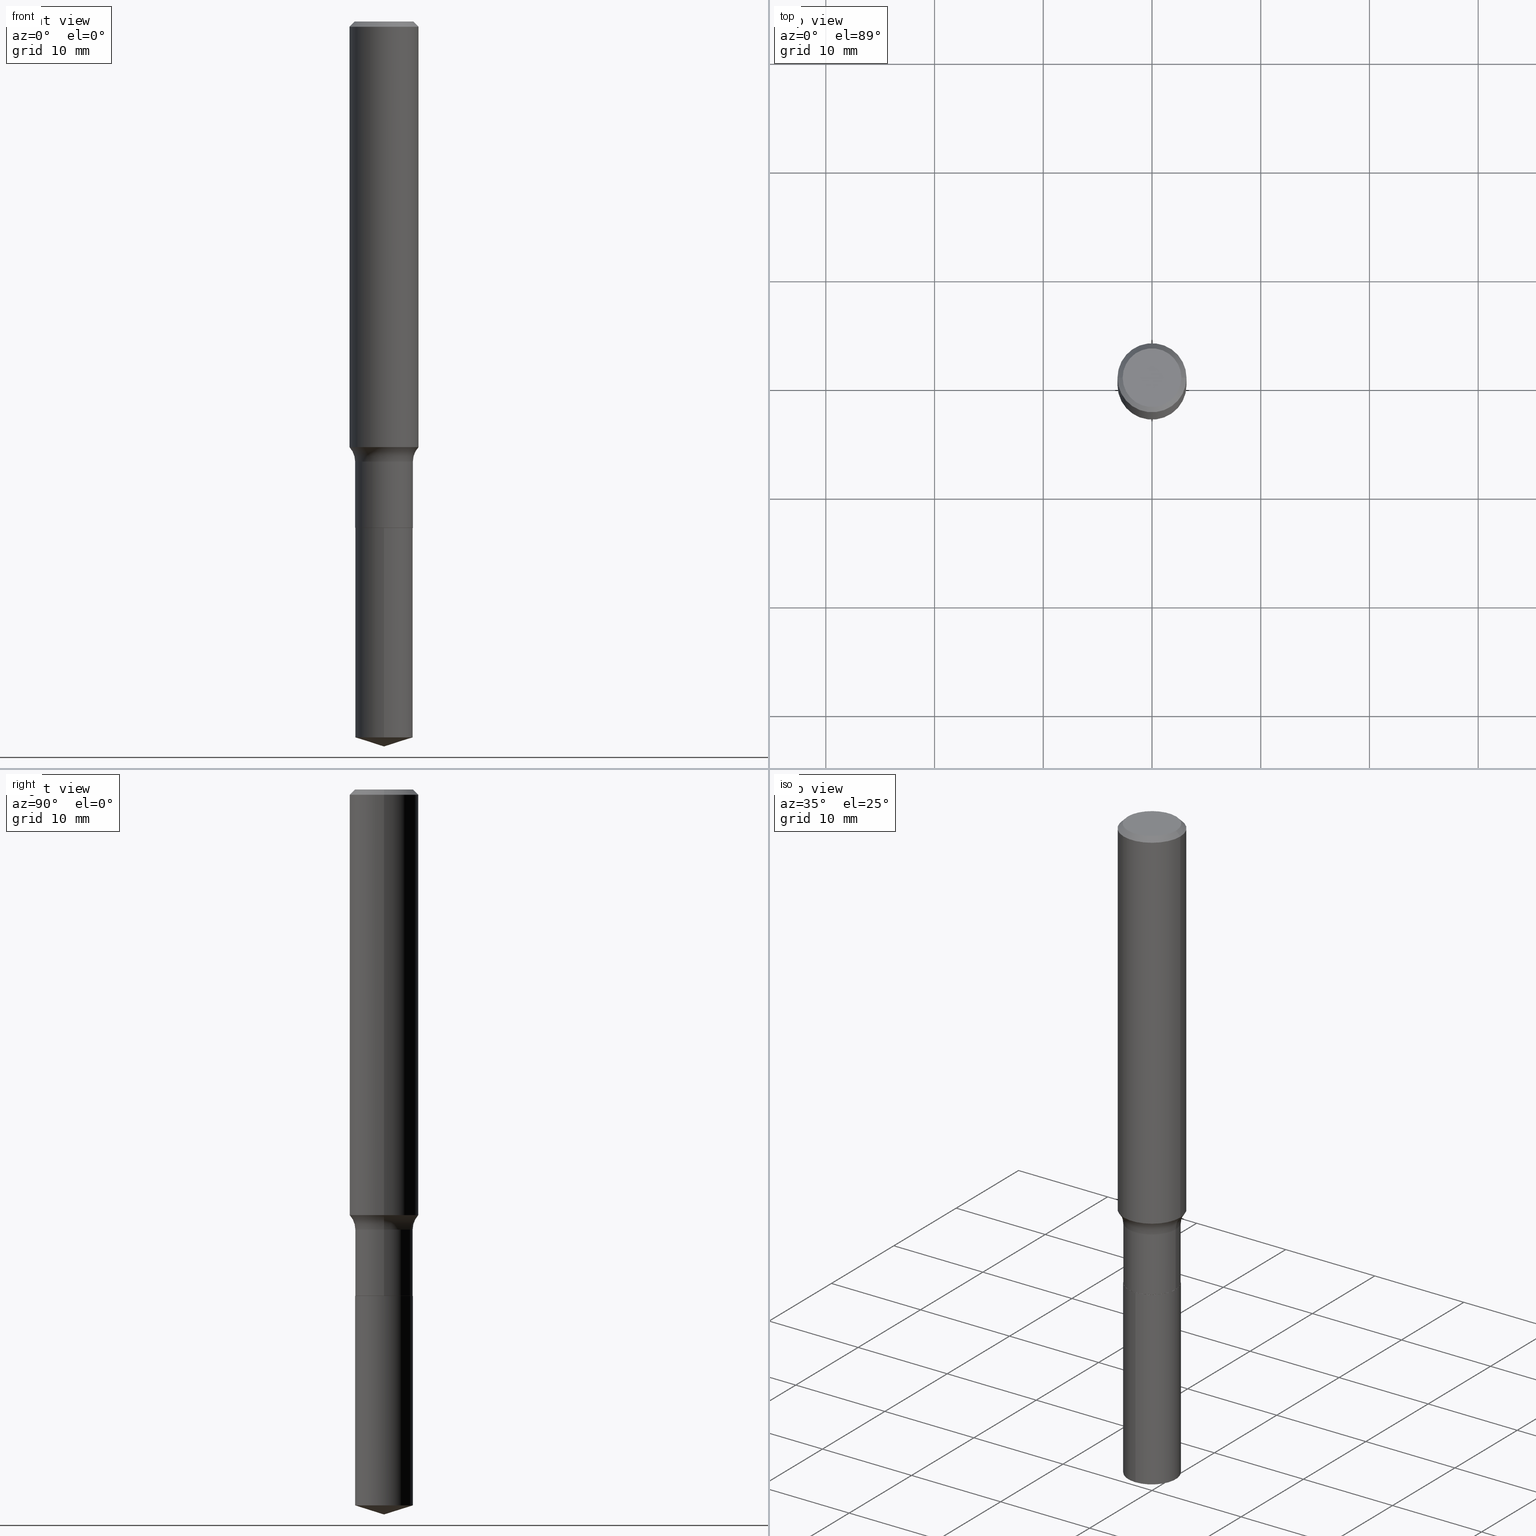
[diagram: canonical four-view strip — front | top / right | iso, engineering-drawing reading convention]
A machine part, canonical four-view strip (front | top / right | iso — engineering-drawing reading convention). The complete STEP part file that produces these views, byte-faithful:
ISO-10303-21;
HEADER;
FILE_DESCRIPTION (( 'STEP AP203' ),
    '1' );
FILE_NAME ('51780.STEP',
    '2024-04-19T13:24:04',
    ( '' ),
    ( '' ),
    'SwSTEP 2.0',
    'SolidWorks 2023',
    '' );
FILE_SCHEMA (( 'CONFIG_CONTROL_DESIGN' ));
ENDSEC;

DATA;
#1 = CYLINDRICAL_SURFACE ( 'NONE', #189, 0.1250000000000001110 ) ;
#2 = CARTESIAN_POINT ( 'NONE',  ( -0.1250000000000002220, -4.491829937990087601E-15, -1.540895635854323764 ) ) ;
#3 = VERTEX_POINT ( 'NONE', #454 ) ;
#4 = CARTESIAN_POINT ( 'NONE',  ( -7.297195998181512181E-16, -0.1045000000000090162, -2.592051276562145734 ) ) ;
#5 = CONICAL_SURFACE ( 'NONE', #378, 0.1039999999999999813, 0.7853981633975507526 ) ;
#6 = DIRECTION ( 'NONE',  ( -2.445468806185136597E-29, 3.491481338843145583E-15, 1.000000000000000000 ) ) ;
#7 = ORIENTED_EDGE ( 'NONE', *, *, #139, .F. ) ;
#8 = EDGE_CURVE ( 'NONE', #18, #58, #70, .T. ) ;
#9 = DIRECTION ( 'NONE',  ( 0.7071067811866199593, -2.468850131083015945E-15, 0.7071067811864750752 ) ) ;
#10 = FACE_OUTER_BOUND ( 'NONE', #411, .T. ) ;
#11 = CARTESIAN_POINT ( 'NONE',  ( 7.425171588693677723E-16, 0.1044999999999909057, -2.592051276562146622 ) ) ;
#12 = DIRECTION ( 'NONE',  ( 1.000000000000000000, -6.982962677686266711E-15, 4.876176775795935232E-29 ) ) ;
#13 = ORIENTED_EDGE ( 'NONE', *, *, #336, .F. ) ;
#14 = DIRECTION ( 'NONE',  ( -2.438088387897960049E-29, 3.491481338843145188E-15, 1.000000000000000000 ) ) ;
#15 = AXIS2_PLACEMENT_3D ( 'NONE', #226, #187, #339 ) ;
#16 = ADVANCED_FACE ( 'NONE', ( #32 ), #186, .T. ) ;
#17 = CARTESIAN_POINT ( 'NONE',  ( -0.1039999999999999813, -5.664412330247825043E-15, -1.834000000000000075 ) ) ;
#18 = VERTEX_POINT ( 'NONE', #4 ) ;
#19 = DIRECTION ( 'NONE',  ( -2.445444567542754060E-29, 3.491516049958615080E-15, 1.000000000000000000 ) ) ;
#20 = ORIENTED_EDGE ( 'NONE', *, *, #194, .T. ) ;
#21 = DIRECTION ( 'NONE',  ( -6.982962677686266711E-15, -1.000000000000000000, 5.228417212754571700E-15 ) ) ;
#22 = AXIS2_PLACEMENT_3D ( 'NONE', #246, #83, #310 ) ;
#23 = CONICAL_SURFACE ( 'NONE', #54, 0.1039999999999999813, 0.7853981633975507526 ) ;
#24 = DATE_AND_TIME ( #448, #372 ) ;
#25 = EDGE_LOOP ( 'NONE', ( #332, #261, #285, #263 ) ) ;
#26 = APPROVAL_PERSON_ORGANIZATION ( #252, #185, #334 ) ;
#27 = CARTESIAN_POINT ( 'NONE',  ( 0.1039999999999999813, -7.129604893917701409E-15, -1.834000000000000075 ) ) ;
#28 = EDGE_CURVE ( 'NONE', #294, #169, #429, .T. ) ;
#29 = DATE_TIME_ROLE ( 'creation_date' ) ;
#30 = VERTEX_POINT ( 'NONE', #11 ) ;
#31 = CARTESIAN_POINT ( 'NONE',  ( -0.1250000000000000000, 8.074050596074738982E-16, -0.01875000000000013115 ) ) ;
#32 = FACE_OUTER_BOUND ( 'NONE', #255, .T. ) ;
#33 = AXIS2_PLACEMENT_3D ( 'NONE', #303, #34, #111 ) ;
#34 = DIRECTION ( 'NONE',  ( -2.445468806185136597E-29, 3.491481338843145583E-15, 1.000000000000000000 ) ) ;
#35 = CARTESIAN_POINT ( 'NONE',  ( 4.585254011597162998E-31, -6.546527510330944066E-17, -0.01875000000000013115 ) ) ;
#36 = CLOSED_SHELL ( 'NONE', ( #151, #290, #223, #163, #173 ) ) ;
#37 = DIMENSIONAL_EXPONENTS ( 1.000000000000000000, 0.000000000000000000, 0.000000000000000000, 0.000000000000000000, 0.000000000000000000, 0.000000000000000000, 0.000000000000000000 ) ;
#38 = LOCAL_TIME ( 9, 24, 4.000000000000000000, #478 ) ;
#39 = CARTESIAN_POINT ( 'NONE',  ( 6.419291989799729163E-29, -9.165229631141365867E-15, -2.625000000000000000 ) ) ;
#40 = CYLINDRICAL_SURFACE ( 'NONE', #143, 0.1250000000000001110 ) ;
#41 = CARTESIAN_POINT ( 'NONE',  ( -7.297195998181698549E-16, -0.1045000000000063933, -1.833999999999999853 ) ) ;
#42 = FACE_OUTER_BOUND ( 'NONE', #165, .T. ) ;
#43 = ORIENTED_EDGE ( 'NONE', *, *, #481, .F. ) ;
#44 = FACE_OUTER_BOUND ( 'NONE', #238, .T. ) ;
#45 = AXIS2_PLACEMENT_3D ( 'NONE', #77, #239, #392 ) ;
#46 = DIRECTION ( 'NONE',  ( 0.000000000000000000, 0.000000000000000000, 1.000000000000000000 ) ) ;
#47 = FACE_OUTER_BOUND ( 'NONE', #114, .T. ) ;
#48 = APPROVAL_STATUS ( 'not_yet_approved' ) ;
#49 = DIRECTION ( 'NONE',  ( 6.776566513254251038E-15, 0.9537169507482278208, 0.3007057995042706211 ) ) ;
#50 = EDGE_CURVE ( 'NONE', #159, #58, #286, .T. ) ;
#51 = COORDINATED_UNIVERSAL_TIME_OFFSET ( 5, 0, .BEHIND. ) ;
#52 = CARTESIAN_POINT ( 'NONE',  ( 3.897099089536633274E-29, -5.564024661580436267E-15, -1.593599999999999905 ) ) ;
#53 = AXIS2_PLACEMENT_3D ( 'NONE', #269, #350, #313 ) ;
#54 = AXIS2_PLACEMENT_3D ( 'NONE', #136, #102, #480 ) ;
#55 = CALENDAR_DATE ( 2024, 19, 4 ) ;
#56 = EDGE_LOOP ( 'NONE', ( #418, #319, #377 ) ) ;
#57 = APPROVAL_DATE_TIME ( #100, #126 ) ;
#58 = VERTEX_POINT ( 'NONE', #41 ) ;
#59 = DIRECTION ( 'NONE',  ( -2.445468806185136597E-29, 3.491481338843145583E-15, 1.000000000000000000 ) ) ;
#60 = VERTEX_POINT ( 'NONE', #2 ) ;
#61 = DIRECTION ( 'NONE',  ( -0.7071067811865450192, 2.468850131082230634E-15, -0.7071067811865500152 ) ) ;
#62 = AXIS2_PLACEMENT_3D ( 'NONE', #222, #19, #21 ) ;
#63 = AXIS2_PLACEMENT_3D ( 'NONE', #283, #107, #68 ) ;
#64 = COORDINATED_UNIVERSAL_TIME_OFFSET ( 5, 0, .BEHIND. ) ;
#65 = VERTEX_POINT ( 'NONE', #160 ) ;
#66 = CYLINDRICAL_SURFACE ( 'NONE', #306, 0.1044999999999999679 ) ;
#67 = ORIENTED_EDGE ( 'NONE', *, *, #425, .F. ) ;
#68 = DIRECTION ( 'NONE',  ( -6.982962677686265922E-15, -1.000000000000000000, 3.500519750498747030E-15 ) ) ;
#69 = ADVANCED_FACE ( 'NONE', ( #44 ), #356, .F. ) ;
#70 = LINE ( 'NONE', #337, #149 ) ;
#71 = DIRECTION ( 'NONE',  ( 1.000000000000000000, -6.982962677686264344E-15, 0.000000000000000000 ) ) ;
#72 = MANIFOLD_SOLID_BREP ( 'Body-Move/Copy2[2]', #240 ) ;
#73 = EDGE_CURVE ( 'NONE', #420, #3, #432, .T. ) ;
#74 = DIRECTION ( 'NONE',  ( 1.000000000000000000, -6.982962677686267499E-15, 0.000000000000000000 ) ) ;
#75 = AXIS2_PLACEMENT_3D ( 'NONE', #299, #342, #488 ) ;
#76 = CARTESIAN_POINT ( 'NONE',  ( 0.000000000000000000, 0.000000000000000000, 0.000000000000000000 ) ) ;
#77 = CARTESIAN_POINT ( 'NONE',  ( -1.591006383764329968E-46, 2.271535455632767580E-32, 6.505936120470314915E-18 ) ) ;
#78 = CC_DESIGN_PERSON_AND_ORGANIZATION_ASSIGNMENT ( #122, #198, ( #193 ) ) ;
#79 = CARTESIAN_POINT ( 'NONE',  ( 6.338762166731291806E-29, -9.050124974246680744E-15, -2.592051276562146178 ) ) ;
#80 = DIRECTION ( 'NONE',  ( -2.445444567542754060E-29, 3.491516049958615080E-15, 1.000000000000000000 ) ) ;
#81 = DIRECTION ( 'NONE',  ( -2.445468806185136597E-29, 3.491481338843145583E-15, 1.000000000000000000 ) ) ;
#82 = VERTEX_POINT ( 'NONE', #128 ) ;
#83 = DIRECTION ( 'NONE',  ( -6.982962677686266711E-15, -1.000000000000000000, 3.491481338843145583E-15 ) ) ;
#84 = AXIS2_PLACEMENT_3D ( 'NONE', #280, #14, #153 ) ;
#85 = CC_DESIGN_APPROVAL ( #309, ( #487 ) ) ;
#86 = DIRECTION ( 'NONE',  ( -2.445468806185136597E-29, 3.491481338843145583E-15, 1.000000000000000000 ) ) ;
#87 = EDGE_CURVE ( 'NONE', #169, #420, #440, .T. ) ;
#88 = CARTESIAN_POINT ( 'NONE',  ( 4.484989790543541016E-29, -6.403376775438329103E-15, -1.834000000000000075 ) ) ;
#89 = PERSON_AND_ORGANIZATION ( #272, #393 ) ;
#90 = PRODUCT_RELATED_PRODUCT_CATEGORY ( 'detail', '', ( #193 ) ) ;
#91 = FACE_OUTER_BOUND ( 'NONE', #474, .T. ) ;
#92 = ORIENTED_EDGE ( 'NONE', *, *, #190, .T. ) ;
#93 = LINE ( 'NONE', #17, #414 ) ;
#94 = PERSON_AND_ORGANIZATION_ROLE ( 'classification_officer' ) ;
#95 = EDGE_LOOP ( 'NONE', ( #13, #363 ) ) ;
#96 = CARTESIAN_POINT ( 'NONE',  ( 0.1250000000000002220, -6.252878692400998539E-15, -1.540895635854323764 ) ) ;
#97 = EDGE_CURVE ( 'NONE', #413, #30, #271, .T. ) ;
#98 = ORIENTED_EDGE ( 'NONE', *, *, #87, .T. ) ;
#99 = DIRECTION ( 'NONE',  ( 7.105427357601001859E-15, 1.000000000000000000, -3.491481338843145583E-15 ) ) ;
#100 = DATE_AND_TIME ( #171, #322 ) ;
#101 = ORIENTED_EDGE ( 'NONE', *, *, #257, .T. ) ;
#102 = DIRECTION ( 'NONE',  ( -2.445468806185136597E-29, 3.491481338843145583E-15, 1.000000000000000000 ) ) ;
#103 = CIRCLE ( 'NONE', #15, 0.1044999999999999818 ) ;
#104 = CIRCLE ( 'NONE', #33, 0.1044999999999999540 ) ;
#105 = ORIENTED_EDGE ( 'NONE', *, *, #87, .F. ) ;
#106 = ADVANCED_FACE ( 'NONE', ( #389 ), #248, .F. ) ;
#107 = DIRECTION ( 'NONE',  ( -2.445444567542754060E-29, 3.491516049958615080E-15, 1.000000000000000000 ) ) ;
#108 = ORIENTED_EDGE ( 'NONE', *, *, #345, .T. ) ;
#109 =( GEOMETRIC_REPRESENTATION_CONTEXT ( 3 ) GLOBAL_UNCERTAINTY_ASSIGNED_CONTEXT ( ( #417 ) ) GLOBAL_UNIT_ASSIGNED_CONTEXT ( ( #237, #120, #457 ) ) REPRESENTATION_CONTEXT ( 'NONE', 'WORKASPACE' ) );
#110 = DIRECTION ( 'NONE',  ( -2.445468806185136597E-29, 3.491481338843145583E-15, 1.000000000000000000 ) ) ;
#111 = DIRECTION ( 'NONE',  ( 1.000000000000000000, -6.982962677686266711E-15, 0.000000000000000000 ) ) ;
#112 = PRODUCT_DEFINITION_SHAPE ( 'NONE', 'NONE',  #487 ) ;
#113 = CIRCLE ( 'NONE', #22, 0.07799999999999999989 ) ;
#114 = EDGE_LOOP ( 'NONE', ( #250, #92, #458, #216 ) ) ;
#115 = VECTOR ( 'NONE', #348, 39.37007874015748143 ) ;
#116 = EDGE_CURVE ( 'NONE', #436, #242, #266, .T. ) ;
#117 = PLANE ( 'NONE',  #489 ) ;
#118 = SECURITY_CLASSIFICATION ( '', '', #368 ) ;
#119 = DIRECTION ( 'NONE',  ( -1.000000000000000000, 6.982962677686265922E-15, -4.876176775795935793E-29 ) ) ;
#120 =( NAMED_UNIT ( * ) PLANE_ANGLE_UNIT ( ) SI_UNIT ( $, .RADIAN. ) );
#121 = DIRECTION ( 'NONE',  ( -2.445468806185136597E-29, 3.491481338843145583E-15, 1.000000000000000000 ) ) ;
#122 = PERSON_AND_ORGANIZATION ( #272, #393 ) ;
#123 = EDGE_LOOP ( 'NONE', ( #43, #135, #253, #276 ) ) ;
#124 = CARTESIAN_POINT ( 'NONE',  ( 4.484989790543541016E-29, -6.403376775438329103E-15, -1.834000000000000075 ) ) ;
#125 = CONICAL_SURFACE ( 'NONE', #359, 0.1250000000000000000, 0.7853981633974447263 ) ;
#126 = APPROVAL ( #445, 'UNSPECIFIED' ) ;
#127 = CC_DESIGN_PERSON_AND_ORGANIZATION_ASSIGNMENT ( #89, #247, ( #491 ) ) ;
#128 = CARTESIAN_POINT ( 'NONE',  ( -0.1044999999999999818, -5.240310689305368552E-15, -1.833500000000000352 ) ) ;
#129 = EDGE_LOOP ( 'NONE', ( #154, #441 ) ) ;
#130 = LINE ( 'NONE', #295, #346 ) ;
#131 = ORIENTED_EDGE ( 'NONE', *, *, #345, .F. ) ;
#132 = CARTESIAN_POINT ( 'NONE',  ( -8.985800873537872979E-28, 1.282960958384387014E-13, 36.74507874015748143 ) ) ;
#133 = EDGE_CURVE ( 'NONE', #282, #420, #113, .T. ) ;
#134 = CONICAL_SURFACE ( 'NONE', #384, 124.8659371009135413, 1.265363707695888129 ) ;
#135 = ORIENTED_EDGE ( 'NONE', *, *, #473, .F. ) ;
#136 = CARTESIAN_POINT ( 'NONE',  ( 4.484989790543541016E-29, -6.403376775438329103E-15, -1.834000000000000075 ) ) ;
#137 = EDGE_LOOP ( 'NONE', ( #7, #408, #464, #479 ) ) ;
#138 = DIRECTION ( 'NONE',  ( -2.445468806185136597E-29, 3.491481338843145583E-15, 1.000000000000000000 ) ) ;
#139 = EDGE_CURVE ( 'NONE', #172, #446, #259, .T. ) ;
#140 = APPROVAL_STATUS ( 'not_yet_approved' ) ;
#141 = EDGE_LOOP ( 'NONE', ( #365, #273, #225, #312 ) ) ;
#142 = DIRECTION ( 'NONE',  ( -2.445444567542754060E-29, 3.491516049958615080E-15, 1.000000000000000000 ) ) ;
#143 = AXIS2_PLACEMENT_3D ( 'NONE', #76, #86, #12 ) ;
#144 = LOCAL_TIME ( 9, 24, 4.000000000000000000, #482 ) ;
#145 = DIRECTION ( 'NONE',  ( -2.445468806185136597E-29, 3.491481338843145583E-15, 1.000000000000000000 ) ) ;
#146 = FACE_OUTER_BOUND ( 'NONE', #141, .T. ) ;
#147 = CARTESIAN_POINT ( 'NONE',  ( 4.483767056140448215E-29, -6.401631034768908389E-15, -1.833500000000000352 ) ) ;
#148 = ADVANCED_FACE ( 'NONE', ( #91 ), #382, .F. ) ;
#149 = VECTOR ( 'NONE', #227, 39.37007874015748143 ) ;
#150 = DIRECTION ( 'NONE',  ( 1.000000000000000000, -6.982962677686269077E-15, 0.000000000000000000 ) ) ;
#151 = ADVANCED_FACE ( 'NONE', ( #401 ), #354, .T. ) ;
#152 = CARTESIAN_POINT ( 'NONE',  ( 0.000000000000000000, 0.000000000000000000, 0.000000000000000000 ) ) ;
#153 = DIRECTION ( 'NONE',  ( 1.000000000000000000, -6.982962677686265922E-15, 4.876176775795935793E-29 ) ) ;
#154 = ORIENTED_EDGE ( 'NONE', *, *, #302, .T. ) ;
#155 = AXIS2_PLACEMENT_3D ( 'NONE', #147, #110, #71 ) ;
#156 = CARTESIAN_POINT ( 'NONE',  ( 0.1044999999999999679, -7.297195998182146228E-16, 5.095604730706752119E-30 ) ) ;
#157 = APPROVAL_PERSON_ORGANIZATION ( #331, #126, #291 ) ;
#158 = LINE ( 'NONE', #349, #402 ) ;
#159 = VERTEX_POINT ( 'NONE', #274 ) ;
#160 = CARTESIAN_POINT ( 'NONE',  ( -0.1039999999999999813, -5.661763103073714630E-15, -1.834000000000000075 ) ) ;
#161 = CARTESIAN_POINT ( 'NONE',  ( -1.591006383764329968E-46, 2.271535455632767580E-32, 6.505936120470314915E-18 ) ) ;
#162 = DIRECTION ( 'NONE',  ( -2.445444567542754060E-29, 3.491516049958615080E-15, 1.000000000000000000 ) ) ;
#163 = ADVANCED_FACE ( 'NONE', ( #47 ), #203, .T. ) ;
#164 = CARTESIAN_POINT ( 'NONE',  ( -0.1250000000000000000, -1.834558396696634968E-15, -0.01875000000000013115 ) ) ;
#165 = EDGE_LOOP ( 'NONE', ( #430, #20, #67, #131 ) ) ;
#166 = AXIS2_PLACEMENT_3D ( 'NONE', #361, #99, #412 ) ;
#167 = CARTESIAN_POINT ( 'NONE',  ( 0.1062499999999999972, -8.259777185439879685E-16, 6.505936120475796882E-18 ) ) ;
#168 = CONICAL_SURFACE ( 'NONE', #63, 124.8659371009135413, 1.265363707695888129 ) ;
#169 = VERTEX_POINT ( 'NONE', #278 ) ;
#170 = CARTESIAN_POINT ( 'NONE',  ( 0.000000000000000000, 0.000000000000000000, 0.000000000000000000 ) ) ;
#171 = CALENDAR_DATE ( 2024, 19, 4 ) ;
#172 = VERTEX_POINT ( 'NONE', #167 ) ;
#173 = ADVANCED_FACE ( 'NONE', ( #467 ), #117, .F. ) ;
#174 = CARTESIAN_POINT ( 'NONE',  ( 4.484989790543541016E-29, -6.403376775438329103E-15, -1.834000000000000075 ) ) ;
#175 = EDGE_LOOP ( 'NONE', ( #449, #268, #245, #213 ) ) ;
#176 = FACE_OUTER_BOUND ( 'NONE', #179, .T. ) ;
#177 = APPROVAL_PERSON_ORGANIZATION ( #353, #309, #220 ) ;
#178 = DATE_AND_TIME ( #400, #38 ) ;
#179 = EDGE_LOOP ( 'NONE', ( #397, #472, #298 ) ) ;
#180 = DIRECTION ( 'NONE',  ( -1.000000000000000000, 6.982962677686266711E-15, 0.000000000000000000 ) ) ;
#181 = EDGE_CURVE ( 'NONE', #60, #3, #421, .T. ) ;
#182 = COORDINATED_UNIVERSAL_TIME_OFFSET ( 5, 0, .BEHIND. ) ;
#183 = ORIENTED_EDGE ( 'NONE', *, *, #387, .T. ) ;
#184 = LINE ( 'NONE', #450, #460 ) ;
#185 = APPROVAL ( #140, 'UNSPECIFIED' ) ;
#186 = CYLINDRICAL_SURFACE ( 'NONE', #485, 0.1044999999999999679 ) ;
#187 = DIRECTION ( 'NONE',  ( -2.445468806185136597E-29, 3.491481338843145583E-15, 1.000000000000000000 ) ) ;
#188 = VECTOR ( 'NONE', #49, 39.37007874015747433 ) ;
#189 = AXIS2_PLACEMENT_3D ( 'NONE', #152, #6, #270 ) ;
#190 = EDGE_CURVE ( 'NONE', #30, #18, #275, .T. ) ;
#191 = DIRECTION ( 'NONE',  ( 2.445468806185136597E-29, -3.491481338843145583E-15, -1.000000000000000000 ) ) ;
#192 = AXIS2_PLACEMENT_3D ( 'NONE', #311, #195, #74 ) ;
#193 = PRODUCT ( '51780', '51780', '', ( #307 ) ) ;
#194 = EDGE_CURVE ( 'NONE', #60, #436, #130, .T. ) ;
#195 = DIRECTION ( 'NONE',  ( -2.445468806185136597E-29, 3.491481338843145583E-15, 1.000000000000000000 ) ) ;
#196 = LINE ( 'NONE', #204, #115 ) ;
#197 = CARTESIAN_POINT ( 'NONE',  ( 4.484989790543541016E-29, -6.403376775438329103E-15, -1.834000000000000075 ) ) ;
#198 = PERSON_AND_ORGANIZATION_ROLE ( 'design_owner' ) ;
#199 = VECTOR ( 'NONE', #289, 39.37007874015748143 ) ;
#200 = DIRECTION ( 'NONE',  ( 1.000000000000000000, -6.982962677686265922E-15, 4.883557194083112901E-29 ) ) ;
#201 = APPLICATION_PROTOCOL_DEFINITION ( 'international standard', 'config_control_design', 1994, #462 ) ;
#202 = EDGE_CURVE ( 'NONE', #65, #82, #93, .T. ) ;
#203 = CYLINDRICAL_SURFACE ( 'NONE', #305, 0.1044999999999999818 ) ;
#204 = CARTESIAN_POINT ( 'NONE',  ( 7.425171588693493327E-16, 0.1044999999999935841, -1.834000000000000519 ) ) ;
#205 = DIRECTION ( 'NONE',  ( -2.445444567542754060E-29, 3.491516049958615080E-15, 1.000000000000000000 ) ) ;
#206 = PERSON_AND_ORGANIZATION_ROLE ( 'creator' ) ;
#207 = DIRECTION ( 'NONE',  ( -2.445468806185136877E-29, 3.491481338843145188E-15, 1.000000000000000000 ) ) ;
#208 = AXIS2_PLACEMENT_3D ( 'NONE', #161, #81, #435 ) ;
#209 = ADVANCED_FACE ( 'NONE', ( #416 ), #66, .T. ) ;
#210 = PERSON_AND_ORGANIZATION_ROLE ( 'creator' ) ;
#211 = ORIENTED_EDGE ( 'NONE', *, *, #202, .T. ) ;
#212 = LINE ( 'NONE', #364, #199 ) ;
#213 = ORIENTED_EDGE ( 'NONE', *, *, #8, .F. ) ;
#214 = DIRECTION ( 'NONE',  ( 1.000000000000000000, -6.982962677686269077E-15, 0.000000000000000000 ) ) ;
#215 = CALENDAR_DATE ( 2024, 19, 4 ) ;
#216 = ORIENTED_EDGE ( 'NONE', *, *, #50, .F. ) ;
#217 = DIRECTION ( 'NONE',  ( -2.445444567542754060E-29, 3.491516049958615080E-15, 1.000000000000000000 ) ) ;
#218 = AXIS2_PLACEMENT_3D ( 'NONE', #88, #80, #431 ) ;
#219 = AXIS2_PLACEMENT_3D ( 'NONE', #314, #235, #318 ) ;
#220 = APPROVAL_ROLE ( '' ) ;
#221 = ORIENTED_EDGE ( 'NONE', *, *, #139, .T. ) ;
#222 = CARTESIAN_POINT ( 'NONE',  ( 6.338762166731291806E-29, -9.050124974246680744E-15, -2.592051276562146178 ) ) ;
#223 = ADVANCED_FACE ( 'NONE', ( #176 ), #168, .T. ) ;
#224 = CC_DESIGN_PERSON_AND_ORGANIZATION_ASSIGNMENT ( #281, #210, ( #487 ) ) ;
#225 = ORIENTED_EDGE ( 'NONE', *, *, #133, .T. ) ;
#226 = CARTESIAN_POINT ( 'NONE',  ( 4.483767056140448215E-29, -6.401631034768908389E-15, -1.833500000000000352 ) ) ;
#227 = DIRECTION ( 'NONE',  ( -2.445444567542754060E-29, 3.491516049958615475E-15, 1.000000000000000000 ) ) ;
#228 = CIRCLE ( 'NONE', #260, 0.1250000000000001943 ) ;
#229 = EDGE_CURVE ( 'NONE', #65, #294, #442, .T. ) ;
#230 = FACE_OUTER_BOUND ( 'NONE', #137, .T. ) ;
#231 = EDGE_CURVE ( 'NONE', #60, #282, #228, .T. ) ;
#232 = AXIS2_PLACEMENT_3D ( 'NONE', #461, #358, #119 ) ;
#233 = VECTOR ( 'NONE', #301, 39.37007874015748143 ) ;
#234 = CARTESIAN_POINT ( 'NONE',  ( 0.000000000000000000, 0.000000000000000000, 0.000000000000000000 ) ) ;
#235 = DIRECTION ( 'NONE',  ( -2.445468806185136597E-29, 3.491481338843145583E-15, 1.000000000000000000 ) ) ;
#236 = DIRECTION ( 'NONE',  ( 1.000000000000000000, -6.982962677686266711E-15, 0.000000000000000000 ) ) ;
#237 =( CONVERSION_BASED_UNIT ( 'INCH', #463 ) LENGTH_UNIT ( ) NAMED_UNIT ( #37 ) );
#238 = EDGE_LOOP ( 'NONE', ( #451, #221 ) ) ;
#239 = DIRECTION ( 'NONE',  ( -2.445468806185136597E-29, 3.491481338843145583E-15, 1.000000000000000000 ) ) ;
#240 = CLOSED_SHELL ( 'NONE', ( #265, #398, #423, #148, #16, #209, #380, #492, #330, #69, #106, #357 ) ) ;
#241 = CARTESIAN_POINT ( 'NONE',  ( -0.1062499999999999972, 7.746724220558198188E-16, 6.505936120465012444E-18 ) ) ;
#242 = VERTEX_POINT ( 'NONE', #375 ) ;
#243 = LOCAL_TIME ( 9, 24, 4.000000000000000000, #64 ) ;
#244 = DIRECTION ( 'NONE',  ( 1.000000000000000000, -6.982962677686266711E-15, 4.876176775795936353E-29 ) ) ;
#245 = ORIENTED_EDGE ( 'NONE', *, *, #302, .F. ) ;
#246 = CARTESIAN_POINT ( 'NONE',  ( 0.1824999999999999400, -6.838415350258180415E-15, -1.593599999999999905 ) ) ;
#247 = PERSON_AND_ORGANIZATION_ROLE ( 'design_supplier' ) ;
#248 = PLANE ( 'NONE',  #84 ) ;
#249 = APPROVAL_DATE_TIME ( #360, #185 ) ;
#250 = ORIENTED_EDGE ( 'NONE', *, *, #415, .F. ) ;
#251 = DIRECTION ( 'NONE',  ( 1.000000000000000000, -6.982962677686269077E-15, 0.000000000000000000 ) ) ;
#252 = PERSON_AND_ORGANIZATION ( #272, #393 ) ;
#253 = ORIENTED_EDGE ( 'NONE', *, *, #279, .T. ) ;
#254 = CARTESIAN_POINT ( 'NONE',  ( 4.484989790543541016E-29, -6.403376775438329103E-15, -1.834000000000000075 ) ) ;
#255 = EDGE_LOOP ( 'NONE', ( #183, #101, #256, #105 ) ) ;
#256 = ORIENTED_EDGE ( 'NONE', *, *, #73, .F. ) ;
#257 = EDGE_CURVE ( 'NONE', #82, #3, #212, .T. ) ;
#258 = LINE ( 'NONE', #31, #452 ) ;
#259 = CIRCLE ( 'NONE', #45, 0.1062499999999999972 ) ;
#260 = AXIS2_PLACEMENT_3D ( 'NONE', #326, #477, #405 ) ;
#261 = ORIENTED_EDGE ( 'NONE', *, *, #229, .T. ) ;
#262 = FACE_OUTER_BOUND ( 'NONE', #56, .T. ) ;
#263 = ORIENTED_EDGE ( 'NONE', *, *, #376, .F. ) ;
#264 = FACE_OUTER_BOUND ( 'NONE', #25, .T. ) ;
#265 = ADVANCED_FACE ( 'NONE', ( #475 ), #23, .T. ) ;
#266 = CIRCLE ( 'NONE', #53, 0.1250000000000000000 ) ;
#267 = CONICAL_SURFACE ( 'NONE', #490, 0.1250000000000000000, 0.7853981633974447263 ) ;
#268 = ORIENTED_EDGE ( 'NONE', *, *, #415, .T. ) ;
#269 = CARTESIAN_POINT ( 'NONE',  ( 4.585254011597162998E-31, -6.546527510330944066E-17, -0.01875000000000013115 ) ) ;
#270 = DIRECTION ( 'NONE',  ( 1.000000000000000000, -6.982962677686266711E-15, 4.876176775795935232E-29 ) ) ;
#271 = LINE ( 'NONE', #427, #188 ) ;
#272 = PERSON ( 'UNSPECIFIED', 'UNSPECIFIED', 'UNSPECIFIED', ('UNSPECIFIED'), ('UNSPECIFIED'), ('UNSPECIFIED') ) ;
#273 = ORIENTED_EDGE ( 'NONE', *, *, #406, .F. ) ;
#274 = CARTESIAN_POINT ( 'NONE',  ( 7.425171588693679696E-16, 0.1044999999999935703, -1.834000000000000519 ) ) ;
#275 = CIRCLE ( 'NONE', #62, 0.1044999999999999818 ) ;
#276 = ORIENTED_EDGE ( 'NONE', *, *, #116, .T. ) ;
#277 = AXIS2_PLACEMENT_3D ( 'NONE', #409, #59, #214 ) ;
#278 = CARTESIAN_POINT ( 'NONE',  ( 0.1044999999999999818, -7.131350634587122124E-15, -1.833500000000000352 ) ) ;
#279 = EDGE_CURVE ( 'NONE', #446, #436, #258, .T. ) ;
#280 = CARTESIAN_POINT ( 'NONE',  ( 4.484989790543541016E-29, -6.403376775438329103E-15, -1.834000000000000075 ) ) ;
#281 = PERSON_AND_ORGANIZATION ( #272, #393 ) ;
#282 = VERTEX_POINT ( 'NONE', #96 ) ;
#283 = CARTESIAN_POINT ( 'NONE',  ( -8.985800873537872979E-28, 1.282960958384387014E-13, 36.74507874015748143 ) ) ;
#284 = APPROVAL_DATE_TIME ( #373, #309 ) ;
#285 = ORIENTED_EDGE ( 'NONE', *, *, #28, .T. ) ;
#286 = CIRCLE ( 'NONE', #218, 0.1044999999999999818 ) ;
#287 = FACE_OUTER_BOUND ( 'NONE', #123, .T. ) ;
#288 = ORIENTED_EDGE ( 'NONE', *, *, #366, .T. ) ;
#289 = DIRECTION ( 'NONE',  ( -2.445468806185136877E-29, 3.491481338843145188E-15, 1.000000000000000000 ) ) ;
#290 = ADVANCED_FACE ( 'NONE', ( #262 ), #134, .T. ) ;
#291 = APPROVAL_ROLE ( '' ) ;
#292 = EDGE_LOOP ( 'NONE', ( #403, #211, #374, #327 ) ) ;
#293 = DIRECTION ( 'NONE',  ( -0.7071067811866199593, 7.493145998870616062E-15, 0.7071067811864750752 ) ) ;
#294 = VERTEX_POINT ( 'NONE', #27 ) ;
#295 = CARTESIAN_POINT ( 'NONE',  ( -0.1250000000000001110, 8.881784197001260212E-16, -6.148668862818637832E-30 ) ) ;
#296 = VECTOR ( 'NONE', #9, 39.37007874015748143 ) ;
#297 = CIRCLE ( 'NONE', #341, 0.1044999999999999818 ) ;
#298 = ORIENTED_EDGE ( 'NONE', *, *, #190, .F. ) ;
#299 = CARTESIAN_POINT ( 'NONE',  ( 3.897099089536633274E-29, -5.564024661580436267E-15, -1.593599999999999905 ) ) ;
#300 = TOROIDAL_SURFACE ( 'NONE', #75, 0.1824999999999999400, 0.07800000000000001377 ) ;
#301 = DIRECTION ( 'NONE',  ( -2.445468806185136877E-29, 3.491481338843145188E-15, 1.000000000000000000 ) ) ;
#302 = EDGE_CURVE ( 'NONE', #58, #159, #297, .T. ) ;
#303 = CARTESIAN_POINT ( 'NONE',  ( 3.897099089536633274E-29, -5.564024661580436267E-15, -1.593599999999999905 ) ) ;
#304 = DIRECTION ( 'NONE',  ( -2.445468806185136597E-29, 3.491481338843145583E-15, 1.000000000000000000 ) ) ;
#305 = AXIS2_PLACEMENT_3D ( 'NONE', #459, #205, #315 ) ;
#306 = AXIS2_PLACEMENT_3D ( 'NONE', #170, #138, #324 ) ;
#307 = MECHANICAL_CONTEXT ( 'NONE', #462, 'mechanical' ) ;
#308 = ORIENTED_EDGE ( 'NONE', *, *, #133, .F. ) ;
#309 = APPROVAL ( #48, 'UNSPECIFIED' ) ;
#310 = DIRECTION ( 'NONE',  ( 1.000000000000000000, -6.982962677686270655E-15, 0.000000000000000000 ) ) ;
#311 = CARTESIAN_POINT ( 'NONE',  ( 3.768212211068559889E-29, -5.380008357690213622E-15, -1.540895635854323764 ) ) ;
#312 = ORIENTED_EDGE ( 'NONE', *, *, #73, .T. ) ;
#313 = DIRECTION ( 'NONE',  ( 1.000000000000000000, -6.982962677686266711E-15, 0.000000000000000000 ) ) ;
#314 = CARTESIAN_POINT ( 'NONE',  ( 4.585254011597162998E-31, -6.546527510330944066E-17, -0.01875000000000013115 ) ) ;
#315 = DIRECTION ( 'NONE',  ( -6.982962677686266711E-15, -1.000000000000000000, 2.614208606377285850E-15 ) ) ;
#316 = EDGE_CURVE ( 'NONE', #413, #18, #184, .T. ) ;
#317 = AXIS2_PLACEMENT_3D ( 'NONE', #52, #121, #236 ) ;
#318 = DIRECTION ( 'NONE',  ( 1.000000000000000000, -6.982962677686266711E-15, 0.000000000000000000 ) ) ;
#319 = ORIENTED_EDGE ( 'NONE', *, *, #97, .T. ) ;
#320 = CIRCLE ( 'NONE', #277, 0.1039999999999999813 ) ;
#321 = DIRECTION ( 'NONE',  ( 2.445444567542753500E-29, -3.491516049958615475E-15, -1.000000000000000000 ) ) ;
#322 = LOCAL_TIME ( 9, 24, 4.000000000000000000, #51 ) ;
#323 = ORIENTED_EDGE ( 'NONE', *, *, #181, .T. ) ;
#324 = DIRECTION ( 'NONE',  ( 1.000000000000000000, -6.982962677686266711E-15, 4.876176775795936353E-29 ) ) ;
#325 = ORIENTED_EDGE ( 'NONE', *, *, #366, .F. ) ;
#326 = CARTESIAN_POINT ( 'NONE',  ( 3.768212211068559889E-29, -5.380008357690213622E-15, -1.540895635854323764 ) ) ;
#327 = ORIENTED_EDGE ( 'NONE', *, *, #28, .F. ) ;
#328 = DIRECTION ( 'NONE',  ( -2.445468806185136597E-29, 3.491481338843145583E-15, 1.000000000000000000 ) ) ;
#329 = CIRCLE ( 'NONE', #208, 0.1062499999999999972 ) ;
#330 = ADVANCED_FACE ( 'NONE', ( #287 ), #267, .T. ) ;
#331 = PERSON_AND_ORGANIZATION ( #272, #393 ) ;
#332 = ORIENTED_EDGE ( 'NONE', *, *, #202, .F. ) ;
#333 = CARTESIAN_POINT ( 'NONE',  ( 0.1250000000000001110, -8.728703347107841277E-16, 6.095220969744924646E-30 ) ) ;
#334 = APPROVAL_ROLE ( '' ) ;
#335 = ORIENTED_EDGE ( 'NONE', *, *, #116, .F. ) ;
#336 = EDGE_CURVE ( 'NONE', #294, #65, #320, .T. ) ;
#337 = CARTESIAN_POINT ( 'NONE',  ( -7.297195998181698549E-16, -0.1045000000000063933, -1.833999999999999853 ) ) ;
#338 = APPLICATION_CONTEXT ( 'configuration controlled 3d designs of mechanical parts and assemblies' ) ;
#339 = DIRECTION ( 'NONE',  ( 1.000000000000000000, -6.982962677686264344E-15, 0.000000000000000000 ) ) ;
#340 = AXIS2_PLACEMENT_3D ( 'NONE', #197, #162, #465 ) ;
#341 = AXIS2_PLACEMENT_3D ( 'NONE', #254, #142, #419 ) ;
#342 = DIRECTION ( 'NONE',  ( -2.445468806185136597E-29, 3.491481338843145583E-15, 1.000000000000000000 ) ) ;
#343 = DESIGN_CONTEXT ( 'detailed design', #338, 'design' ) ;
#344 = DIRECTION ( 'NONE',  ( -1.000000000000000000, 6.982962677686266711E-15, 0.000000000000000000 ) ) ;
#345 = EDGE_CURVE ( 'NONE', #282, #242, #367, .T. ) ;
#346 = VECTOR ( 'NONE', #453, 39.37007874015748143 ) ;
#347 = CIRCLE ( 'NONE', #192, 0.1250000000000001943 ) ;
#348 = DIRECTION ( 'NONE',  ( -2.445444567542754060E-29, 3.491516049958615475E-15, 1.000000000000000000 ) ) ;
#349 = CARTESIAN_POINT ( 'NONE',  ( 0.1250000000000000000, -9.230275248247509846E-16, -0.01875000000000013115 ) ) ;
#350 = DIRECTION ( 'NONE',  ( -2.445468806185136597E-29, 3.491481338843145583E-15, 1.000000000000000000 ) ) ;
#351 = VECTOR ( 'NONE', #207, 39.37007874015748143 ) ;
#352 = AXIS2_PLACEMENT_3D ( 'NONE', #79, #388, #390 ) ;
#353 = PERSON_AND_ORGANIZATION ( #272, #393 ) ;
#354 = CYLINDRICAL_SURFACE ( 'NONE', #340, 0.1044999999999999818 ) ;
#355 = CARTESIAN_POINT ( 'NONE',  ( 0.1044999999999999540, -6.293744261398650791E-15, -1.593599999999999905 ) ) ;
#356 = PLANE ( 'NONE',  #232 ) ;
#357 = ADVANCED_FACE ( 'NONE', ( #264 ), #5, .T. ) ;
#358 = DIRECTION ( 'NONE',  ( 2.438088387897960049E-29, -3.491481338843145188E-15, -1.000000000000000000 ) ) ;
#359 = AXIS2_PLACEMENT_3D ( 'NONE', #35, #191, #344 ) ;
#360 = DATE_AND_TIME ( #215, #144 ) ;
#361 = CARTESIAN_POINT ( 'NONE',  ( -0.1824999999999999400, -4.267284168818254248E-15, -1.593599999999999905 ) ) ;
#362 = SHAPE_DEFINITION_REPRESENTATION ( #112, #385 ) ;
#363 = ORIENTED_EDGE ( 'NONE', *, *, #229, .F. ) ;
#364 = CARTESIAN_POINT ( 'NONE',  ( -0.1044999999999999679, 7.425171588693044663E-16, -5.140287169316375031E-30 ) ) ;
#365 = ORIENTED_EDGE ( 'NONE', *, *, #181, .F. ) ;
#366 = EDGE_CURVE ( 'NONE', #3, #420, #104, .T. ) ;
#367 = LINE ( 'NONE', #333, #233 ) ;
#368 = SECURITY_CLASSIFICATION_LEVEL ( 'unclassified' ) ;
#369 = EDGE_LOOP ( 'NONE', ( #483, #476, #98, #325 ) ) ;
#370 = AXIS2_PLACEMENT_3D ( 'NONE', #438, #304, #200 ) ;
#371 = DIRECTION ( 'NONE',  ( -6.982962677686265922E-15, -1.000000000000000000, 3.500519750498747030E-15 ) ) ;
#372 = LOCAL_TIME ( 9, 24, 4.000000000000000000, #182 ) ;
#373 = DATE_AND_TIME ( #55, #243 ) ;
#374 = ORIENTED_EDGE ( 'NONE', *, *, #387, .F. ) ;
#375 = CARTESIAN_POINT ( 'NONE',  ( 0.1250000000000000000, -9.383356098140928781E-16, -0.01875000000000013115 ) ) ;
#376 = EDGE_CURVE ( 'NONE', #82, #169, #103, .T. ) ;
#377 = ORIENTED_EDGE ( 'NONE', *, *, #434, .F. ) ;
#378 = AXIS2_PLACEMENT_3D ( 'NONE', #424, #456, #150 ) ;
#379 = CC_DESIGN_APPROVAL ( #185, ( #491 ) ) ;
#380 = ADVANCED_FACE ( 'NONE', ( #146 ), #300, .F. ) ;
#381 = CC_DESIGN_PERSON_AND_ORGANIZATION_ASSIGNMENT ( #439, #206, ( #491 ) ) ;
#382 = TOROIDAL_SURFACE ( 'NONE', #370, 0.1824999999999999400, 0.07800000000000001377 ) ;
#383 = CIRCLE ( 'NONE', #155, 0.1044999999999999818 ) ;
#384 = AXIS2_PLACEMENT_3D ( 'NONE', #132, #217, #371 ) ;
#385 = ADVANCED_BREP_SHAPE_REPRESENTATION ( '51780', ( #410, #72, #433 ), #109 ) ;
#386 = DIRECTION ( 'NONE',  ( 1.000000000000000000, 0.000000000000000000, 0.000000000000000000 ) ) ;
#387 = EDGE_CURVE ( 'NONE', #169, #82, #383, .T. ) ;
#388 = DIRECTION ( 'NONE',  ( -2.445444567542754060E-29, 3.491516049958615080E-15, 1.000000000000000000 ) ) ;
#389 = FACE_OUTER_BOUND ( 'NONE', #95, .T. ) ;
#390 = DIRECTION ( 'NONE',  ( -6.982962677686266711E-15, -1.000000000000000000, 5.228417212754571700E-15 ) ) ;
#391 = ORIENTED_EDGE ( 'NONE', *, *, #231, .F. ) ;
#392 = DIRECTION ( 'NONE',  ( 1.000000000000000000, -6.982962677686266711E-15, 4.875930095424100059E-29 ) ) ;
#393 = ORGANIZATION ( 'UNSPECIFIED', 'UNSPECIFIED', '' ) ;
#394 = DIRECTION ( 'NONE',  ( 0.7071067811865450192, -7.319954787623246579E-15, -0.7071067811865500152 ) ) ;
#395 = ORIENTED_EDGE ( 'NONE', *, *, #194, .F. ) ;
#396 = APPLICATION_PROTOCOL_DEFINITION ( 'international standard', 'config_control_design', 1994, #338 ) ;
#397 = ORIENTED_EDGE ( 'NONE', *, *, #97, .F. ) ;
#398 = ADVANCED_FACE ( 'NONE', ( #230 ), #125, .T. ) ;
#399 = CARTESIAN_POINT ( 'NONE',  ( 0.1039999999999999813, -7.129604893917701409E-15, -1.834000000000000075 ) ) ;
#400 = CALENDAR_DATE ( 2024, 19, 4 ) ;
#401 = FACE_OUTER_BOUND ( 'NONE', #175, .T. ) ;
#402 = VECTOR ( 'NONE', #394, 39.37007874015748143 ) ;
#403 = ORIENTED_EDGE ( 'NONE', *, *, #336, .T. ) ;
#404 = CC_DESIGN_APPROVAL ( #126, ( #118 ) ) ;
#405 = DIRECTION ( 'NONE',  ( 1.000000000000000000, -6.982962677686267499E-15, 0.000000000000000000 ) ) ;
#406 = EDGE_CURVE ( 'NONE', #282, #60, #347, .T. ) ;
#407 = PERSON_AND_ORGANIZATION ( #272, #393 ) ;
#408 = ORIENTED_EDGE ( 'NONE', *, *, #481, .T. ) ;
#409 = CARTESIAN_POINT ( 'NONE',  ( 4.484989790543541016E-29, -6.403376775438329103E-15, -1.834000000000000075 ) ) ;
#410 = MANIFOLD_SOLID_BREP ( 'Body-Move/Copy2[1]', #36 ) ;
#411 = EDGE_LOOP ( 'NONE', ( #395, #443, #108, #335 ) ) ;
#412 = DIRECTION ( 'NONE',  ( -1.000000000000000000, 7.105427357601005014E-15, 0.000000000000000000 ) ) ;
#413 = VERTEX_POINT ( 'NONE', #39 ) ;
#414 = VECTOR ( 'NONE', #293, 39.37007874015748143 ) ;
#415 = EDGE_CURVE ( 'NONE', #30, #159, #196, .T. ) ;
#416 = FACE_OUTER_BOUND ( 'NONE', #369, .T. ) ;
#417 = UNCERTAINTY_MEASURE_WITH_UNIT (LENGTH_MEASURE( 1.000000000000000082E-05 ), #237, 'distance_accuracy_value', 'NONE');
#418 = ORIENTED_EDGE ( 'NONE', *, *, #316, .F. ) ;
#419 = DIRECTION ( 'NONE',  ( -6.982962677686266711E-15, -1.000000000000000000, 2.614208606377285850E-15 ) ) ;
#420 = VERTEX_POINT ( 'NONE', #355 ) ;
#421 = CIRCLE ( 'NONE', #166, 0.07799999999999999989 ) ;
#422 = CIRCLE ( 'NONE', #352, 0.1044999999999999818 ) ;
#423 = ADVANCED_FACE ( 'NONE', ( #42 ), #40, .T. ) ;
#424 = CARTESIAN_POINT ( 'NONE',  ( 4.484989790543541016E-29, -6.403376775438329103E-15, -1.834000000000000075 ) ) ;
#425 = EDGE_CURVE ( 'NONE', #242, #436, #426, .T. ) ;
#426 = CIRCLE ( 'NONE', #219, 0.1250000000000000000 ) ;
#427 = CARTESIAN_POINT ( 'NONE',  ( 6.419381676752415918E-29, -9.165102310769822682E-15, -2.625000000000000000 ) ) ;
#428 = CC_DESIGN_PERSON_AND_ORGANIZATION_ASSIGNMENT ( #407, #94, ( #118 ) ) ;
#429 = LINE ( 'NONE', #399, #296 ) ;
#430 = ORIENTED_EDGE ( 'NONE', *, *, #406, .T. ) ;
#431 = DIRECTION ( 'NONE',  ( -6.982962677686266711E-15, -1.000000000000000000, 2.614208606377285850E-15 ) ) ;
#432 = CIRCLE ( 'NONE', #317, 0.1044999999999999540 ) ;
#433 = AXIS2_PLACEMENT_3D ( 'NONE', #234, #46, #386 ) ;
#434 = EDGE_CURVE ( 'NONE', #18, #30, #422, .T. ) ;
#435 = DIRECTION ( 'NONE',  ( 1.000000000000000000, -6.982962677686266711E-15, 4.875930095424100059E-29 ) ) ;
#436 = VERTEX_POINT ( 'NONE', #164 ) ;
#437 = CC_DESIGN_DATE_AND_TIME_ASSIGNMENT ( #24, #29, ( #487 ) ) ;
#438 = CARTESIAN_POINT ( 'NONE',  ( 3.897099089536633274E-29, -5.564024661580436267E-15, -1.593599999999999905 ) ) ;
#439 = PERSON_AND_ORGANIZATION ( #272, #393 ) ;
#440 = LINE ( 'NONE', #156, #351 ) ;
#441 = ORIENTED_EDGE ( 'NONE', *, *, #50, .T. ) ;
#442 = CIRCLE ( 'NONE', #468, 0.1039999999999999813 ) ;
#443 = ORIENTED_EDGE ( 'NONE', *, *, #231, .T. ) ;
#444 = DIRECTION ( 'NONE',  ( 2.445468806185136597E-29, -3.491481338843145583E-15, -1.000000000000000000 ) ) ;
#445 = APPROVAL_STATUS ( 'not_yet_approved' ) ;
#446 = VERTEX_POINT ( 'NONE', #241 ) ;
#447 = CARTESIAN_POINT ( 'NONE',  ( 4.585254011597162998E-31, -6.546527510330944066E-17, -0.01875000000000013115 ) ) ;
#448 = CALENDAR_DATE ( 2024, 19, 4 ) ;
#449 = ORIENTED_EDGE ( 'NONE', *, *, #434, .T. ) ;
#450 = CARTESIAN_POINT ( 'NONE',  ( 6.419291989799729163E-29, -9.165229631141365867E-15, -2.625000000000000000 ) ) ;
#451 = ORIENTED_EDGE ( 'NONE', *, *, #473, .T. ) ;
#452 = VECTOR ( 'NONE', #61, 39.37007874015748143 ) ;
#453 = DIRECTION ( 'NONE',  ( -2.445468806185136877E-29, 3.491481338843145188E-15, 1.000000000000000000 ) ) ;
#454 = CARTESIAN_POINT ( 'NONE',  ( -0.1044999999999999540, -5.240310689305368552E-15, -1.593599999999999905 ) ) ;
#455 = CC_DESIGN_SECURITY_CLASSIFICATION ( #118, ( #491 ) ) ;
#456 = DIRECTION ( 'NONE',  ( -2.445468806185136597E-29, 3.491481338843145583E-15, 1.000000000000000000 ) ) ;
#457 =( NAMED_UNIT ( * ) SI_UNIT ( $, .STERADIAN. ) SOLID_ANGLE_UNIT ( ) );
#458 = ORIENTED_EDGE ( 'NONE', *, *, #8, .T. ) ;
#459 = CARTESIAN_POINT ( 'NONE',  ( 4.484989790543541016E-29, -6.403376775438329103E-15, -1.834000000000000075 ) ) ;
#460 = VECTOR ( 'NONE', #484, 39.37007874015748854 ) ;
#461 = CARTESIAN_POINT ( 'NONE',  ( -7.955031918821649840E-47, 1.135767727816383790E-32, 3.252968060235157457E-18 ) ) ;
#462 = APPLICATION_CONTEXT ( 'configuration controlled 3d designs of mechanical parts and assemblies' ) ;
#463 = LENGTH_MEASURE_WITH_UNIT ( LENGTH_MEASURE( 0.02539999999999999897 ), #469 );
#464 = ORIENTED_EDGE ( 'NONE', *, *, #425, .T. ) ;
#465 = DIRECTION ( 'NONE',  ( -6.982962677686266711E-15, -1.000000000000000000, 2.614208606377285850E-15 ) ) ;
#466 = CC_DESIGN_DATE_AND_TIME_ASSIGNMENT ( #178, #471, ( #118 ) ) ;
#467 = FACE_OUTER_BOUND ( 'NONE', #129, .T. ) ;
#468 = AXIS2_PLACEMENT_3D ( 'NONE', #174, #328, #251 ) ;
#469 =( LENGTH_UNIT ( ) NAMED_UNIT ( * ) SI_UNIT ( $, .METRE. ) );
#470 = DIRECTION ( 'NONE',  ( 6.982962677686265922E-15, 1.000000000000000000, -3.491516049958615475E-15 ) ) ;
#471 = DATE_TIME_ROLE ( 'classification_date' ) ;
#472 = ORIENTED_EDGE ( 'NONE', *, *, #316, .T. ) ;
#473 = EDGE_CURVE ( 'NONE', #446, #172, #329, .T. ) ;
#474 = EDGE_LOOP ( 'NONE', ( #391, #323, #288, #308 ) ) ;
#475 = FACE_OUTER_BOUND ( 'NONE', #292, .T. ) ;
#476 = ORIENTED_EDGE ( 'NONE', *, *, #376, .T. ) ;
#477 = DIRECTION ( 'NONE',  ( -2.445468806185136597E-29, 3.491481338843145583E-15, 1.000000000000000000 ) ) ;
#478 = COORDINATED_UNIVERSAL_TIME_OFFSET ( 5, 0, .BEHIND. ) ;
#479 = ORIENTED_EDGE ( 'NONE', *, *, #279, .F. ) ;
#480 = DIRECTION ( 'NONE',  ( 1.000000000000000000, -6.982962677686269077E-15, 0.000000000000000000 ) ) ;
#481 = EDGE_CURVE ( 'NONE', #172, #242, #158, .T. ) ;
#482 = COORDINATED_UNIVERSAL_TIME_OFFSET ( 5, 0, .BEHIND. ) ;
#483 = ORIENTED_EDGE ( 'NONE', *, *, #257, .F. ) ;
#484 = DIRECTION ( 'NONE',  ( -6.659769872151623411E-15, -0.9537169507482254893, 0.3007057995042771714 ) ) ;
#485 = AXIS2_PLACEMENT_3D ( 'NONE', #486, #145, #244 ) ;
#486 = CARTESIAN_POINT ( 'NONE',  ( 0.000000000000000000, 0.000000000000000000, 0.000000000000000000 ) ) ;
#487 = PRODUCT_DEFINITION ( 'UNKNOWN', '', #491, #343 ) ;
#488 = DIRECTION ( 'NONE',  ( 1.000000000000000000, -6.982962677686265922E-15, 4.883557194083112901E-29 ) ) ;
#489 = AXIS2_PLACEMENT_3D ( 'NONE', #124, #321, #470 ) ;
#490 = AXIS2_PLACEMENT_3D ( 'NONE', #447, #444, #180 ) ;
#491 = PRODUCT_DEFINITION_FORMATION_WITH_SPECIFIED_SOURCE ( 'ANY', '', #193, .NOT_KNOWN. ) ;
#492 = ADVANCED_FACE ( 'NONE', ( #10 ), #1, .T. ) ;
ENDSEC;
END-ISO-10303-21;
